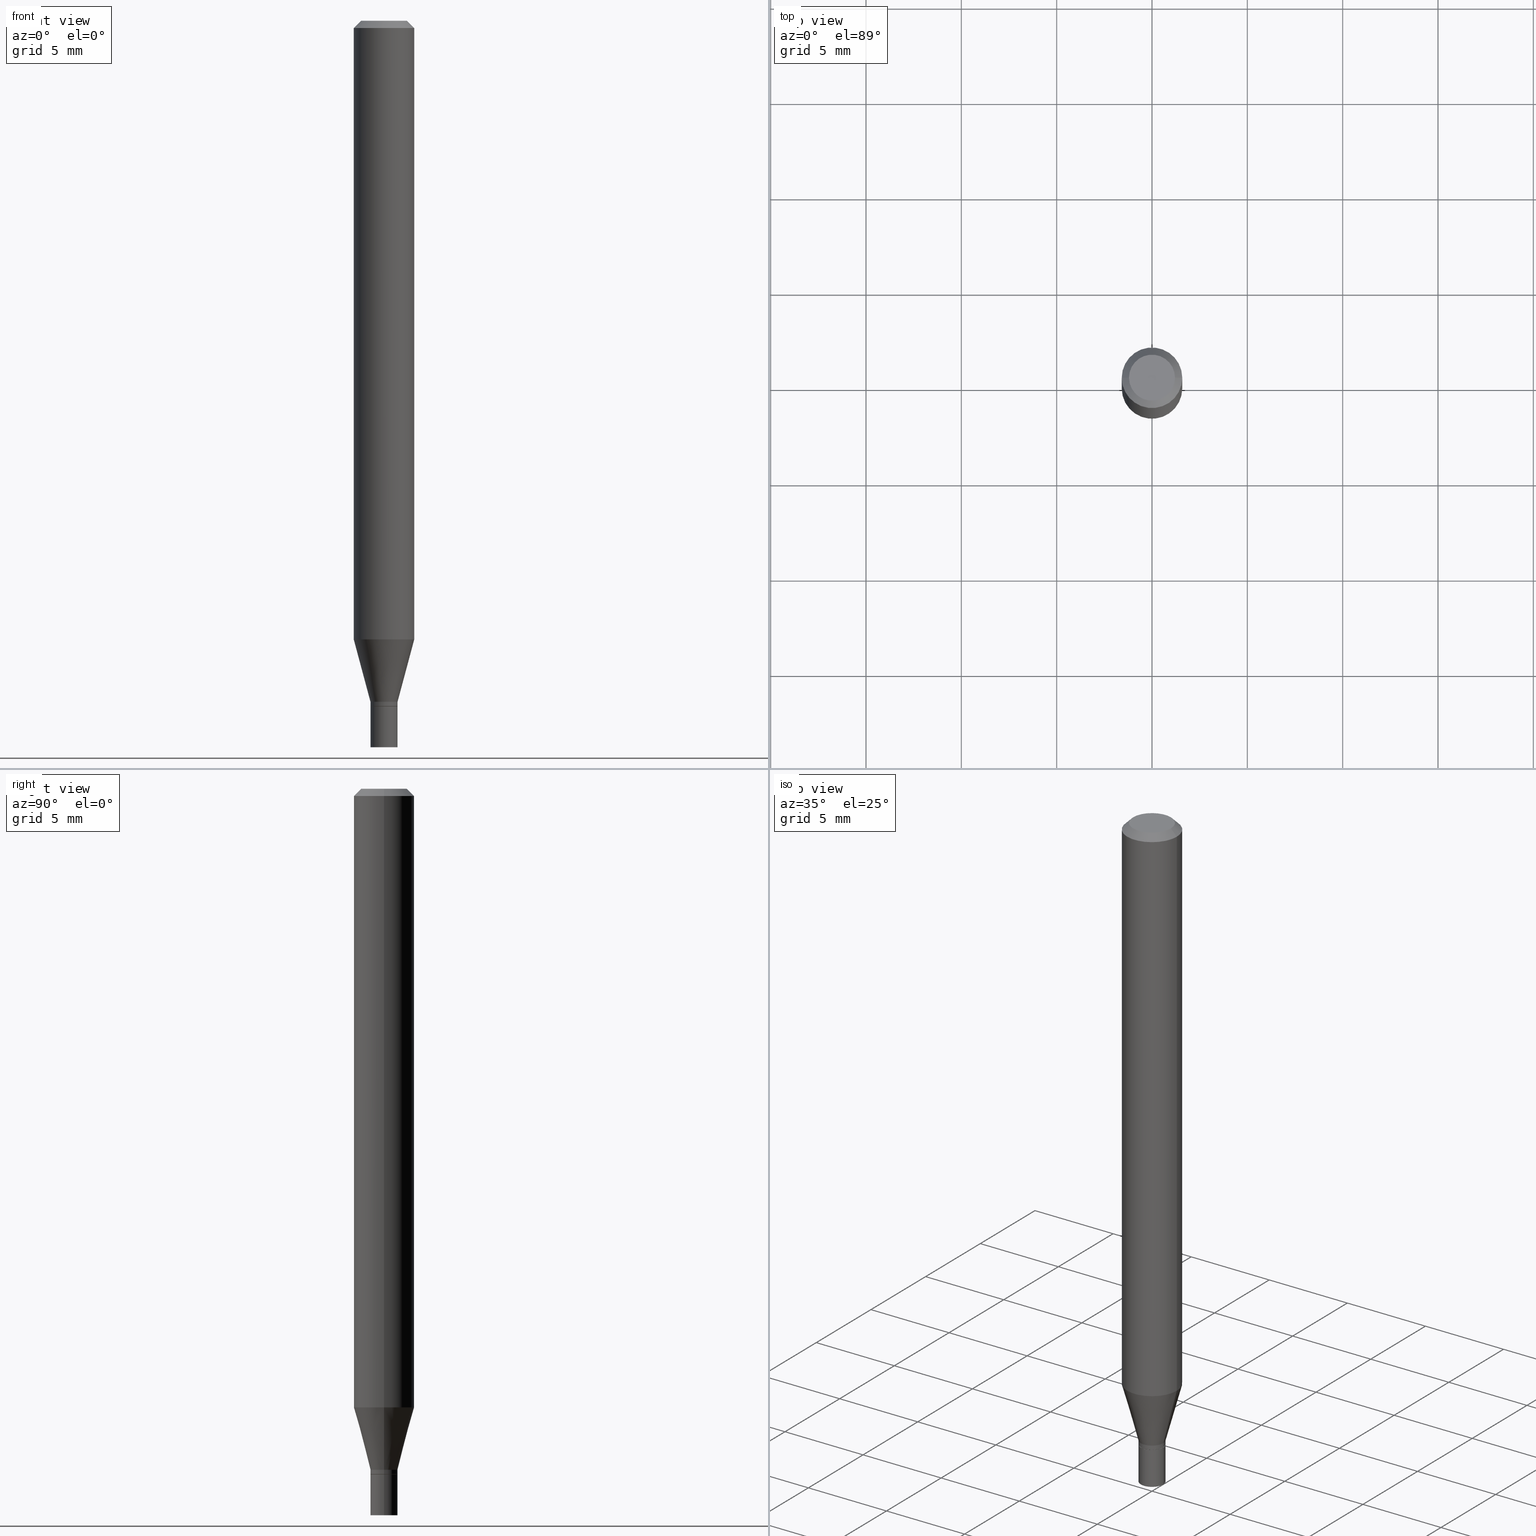
[diagram: canonical four-view strip — front | top / right | iso, engineering-drawing reading convention]
A machine part, canonical four-view strip (front | top / right | iso — engineering-drawing reading convention). The complete STEP part file that produces these views, byte-faithful:
ISO-10303-21;
HEADER;
FILE_DESCRIPTION (( 'STEP AP203' ),
    '1' );
FILE_NAME ('00352.STEP',
    '2024-03-19T21:02:02',
    ( '' ),
    ( '' ),
    'SwSTEP 2.0',
    'SolidWorks 2023',
    '' );
FILE_SCHEMA (( 'CONFIG_CONTROL_DESIGN' ));
ENDSEC;

DATA;
#1 = CARTESIAN_POINT ( 'NONE',  ( 0.000000000000000000, 0.000000000000000000, 0.000000000000000000 ) ) ;
#2 = APPROVAL_ROLE ( '' ) ;
#3 = CARTESIAN_POINT ( 'NONE',  ( 3.461561095155061243E-29, -4.942191835132473030E-15, -1.415500000000000203 ) ) ;
#4 = COORDINATED_UNIVERSAL_TIME_OFFSET ( 5, 0, .BEHIND. ) ;
#5 = VECTOR ( 'NONE', #147, 39.37007874015748143 ) ;
#6 = FACE_OUTER_BOUND ( 'NONE', #343, .T. ) ;
#7 = CYLINDRICAL_SURFACE ( 'NONE', #157, 0.02799999999999992426 ) ;
#8 = DIRECTION ( 'NONE',  ( 1.000000000000000000, -6.982962677686282488E-15, 0.000000000000000000 ) ) ;
#9 = APPLICATION_PROTOCOL_DEFINITION ( 'international standard', 'config_control_design', 1994, #446 ) ;
#10 = DIRECTION ( 'NONE',  ( 1.000000000000000000, -6.982962677686267499E-15, 4.876176775795935793E-29 ) ) ;
#11 = AXIS2_PLACEMENT_3D ( 'NONE', #306, #126, #262 ) ;
#12 = DIRECTION ( 'NONE',  ( 1.000000000000000000, -6.982962677686279332E-15, 0.000000000000000000 ) ) ;
#13 = DIRECTION ( 'NONE',  ( 1.000000000000000000, -6.982962677686266711E-15, 4.876176775795935232E-29 ) ) ;
#14 = EDGE_CURVE ( 'NONE', #93, #32, #31, .T. ) ;
#15 = CARTESIAN_POINT ( 'NONE',  ( 0.04749999999999999362, -4.035134999187576651E-16, 1.163426993633481204E-16 ) ) ;
#16 = DIRECTION ( 'NONE',  ( 0.000000000000000000, 0.000000000000000000, 1.000000000000000000 ) ) ;
#17 = PLANE ( 'NONE',  #173 ) ;
#18 = AXIS2_PLACEMENT_3D ( 'NONE', #85, #369, #216 ) ;
#19 = ORIENTED_EDGE ( 'NONE', *, *, #351, .T. ) ;
#20 = EDGE_CURVE ( 'NONE', #335, #93, #30, .T. ) ;
#21 = CARTESIAN_POINT ( 'NONE',  ( -0.02799999999999992426, -4.362728020290356187E-15, -1.406000000000000139 ) ) ;
#22 = LINE ( 'NONE', #163, #46 ) ;
#23 = ORIENTED_EDGE ( 'NONE', *, *, #102, .F. ) ;
#24 = EDGE_LOOP ( 'NONE', ( #349, #120, #136, #100 ) ) ;
#25 = EDGE_LOOP ( 'NONE', ( #226, #332 ) ) ;
#26 = AXIS2_PLACEMENT_3D ( 'NONE', #254, #50, #12 ) ;
#27 = CONICAL_SURFACE ( 'NONE', #66, 0.02750000000000000014, 0.7853981633974739252 ) ;
#28 = CC_DESIGN_SECURITY_CLASSIFICATION ( #36, ( #300 ) ) ;
#29 = EDGE_CURVE ( 'NONE', #347, #386, #73, .T. ) ;
#30 = LINE ( 'NONE', #435, #51 ) ;
#31 = LINE ( 'NONE', #68, #243 ) ;
#32 = VERTEX_POINT ( 'NONE', #256 ) ;
#33 = PERSON_AND_ORGANIZATION ( #420, #67 ) ;
#34 = MANIFOLD_SOLID_BREP ( 'Body-Move/Copy2[2]', #362 ) ;
#35 = CIRCLE ( 'NONE', #192, 0.02800000000000000405 ) ;
#36 = SECURITY_CLASSIFICATION ( '', '', #184 ) ;
#37 = ORIENTED_EDGE ( 'NONE', *, *, #230, .F. ) ;
#38 = DIRECTION ( 'NONE',  ( -2.445468806185136597E-29, 3.491481338843145583E-15, 1.000000000000000000 ) ) ;
#39 = EDGE_CURVE ( 'NONE', #202, #278, #432, .T. ) ;
#40 = DATE_TIME_ROLE ( 'creation_date' ) ;
#41 = CARTESIAN_POINT ( 'NONE',  ( 0.06250000000000000000, -4.888073874380388472E-16, -0.01499999999999999944 ) ) ;
#42 = COORDINATED_UNIVERSAL_TIME_OFFSET ( 5, 0, .BEHIND. ) ;
#43 = CARTESIAN_POINT ( 'NONE',  ( -0.02799999999999992426, -4.743239869119645590E-15, -1.415500000000000203 ) ) ;
#44 = APPROVAL_DATE_TIME ( #361, #135 ) ;
#45 = EDGE_CURVE ( 'NONE', #32, #347, #60, .T. ) ;
#46 = VECTOR ( 'NONE', #457, 39.37007874015748143 ) ;
#47 = DIRECTION ( 'NONE',  ( -2.445468806185136597E-29, 3.491481338843145583E-15, 1.000000000000000000 ) ) ;
#48 = PERSON_AND_ORGANIZATION_ROLE ( 'design_supplier' ) ;
#49 = DIRECTION ( 'NONE',  ( 1.000000000000000000, -6.982962677686267499E-15, 4.884662768193073002E-29 ) ) ;
#50 = DIRECTION ( 'NONE',  ( -2.445468806185136597E-29, 3.491481338843145583E-15, 1.000000000000000000 ) ) ;
#51 = VECTOR ( 'NONE', #395, 39.37007874015748143 ) ;
#52 = VECTOR ( 'NONE', #194, 39.37007874015748143 ) ;
#53 = CARTESIAN_POINT ( 'NONE',  ( 3.668203209277705088E-31, -5.237222008264718399E-17, -0.01499999999999999944 ) ) ;
#54 = CARTESIAN_POINT ( 'NONE',  ( 0.02800000000000000405, -5.432744963239933676E-15, -1.500000000000000222 ) ) ;
#55 =( NAMED_UNIT ( * ) PLANE_ANGLE_UNIT ( ) SI_UNIT ( $, .RADIAN. ) );
#56 = DIRECTION ( 'NONE',  ( -2.445468806185136597E-29, 3.491481338843145583E-15, 1.000000000000000000 ) ) ;
#57 = ORIENTED_EDGE ( 'NONE', *, *, #108, .F. ) ;
#58 =( CONVERSION_BASED_UNIT ( 'INCH', #131 ) LENGTH_UNIT ( ) NAMED_UNIT ( #130 ) );
#59 = EDGE_CURVE ( 'NONE', #335, #198, #275, .T. ) ;
#60 = CIRCLE ( 'NONE', #18, 0.02799999999999992426 ) ;
#61 = CARTESIAN_POINT ( 'NONE',  ( -0.04749999999999999362, 3.578768372314212971E-16, 1.163426993633431407E-16 ) ) ;
#62 = CARTESIAN_POINT ( 'NONE',  ( 0.02750000000000000014, -5.135969049438267025E-15, -1.416000000000000147 ) ) ;
#63 = DIRECTION ( 'NONE',  ( -1.000000000000000000, 6.982962677686266711E-15, 0.000000000000000000 ) ) ;
#64 = ADVANCED_FACE ( 'NONE', ( #292 ), #252, .T. ) ;
#65 = EDGE_LOOP ( 'NONE', ( #247, #461, #430, #196 ) ) ;
#66 = AXIS2_PLACEMENT_3D ( 'NONE', #110, #117, #368 ) ;
#67 = ORGANIZATION ( 'UNSPECIFIED', 'UNSPECIFIED', '' ) ;
#68 = CARTESIAN_POINT ( 'NONE',  ( 0.02799999999999992426, -1.955229549752149571E-16, 1.365329497222858288E-30 ) ) ;
#69 = ORIENTED_EDGE ( 'NONE', *, *, #389, .T. ) ;
#70 = VERTEX_POINT ( 'NONE', #212 ) ;
#71 = ORIENTED_EDGE ( 'NONE', *, *, #351, .F. ) ;
#72 = PERSON_AND_ORGANIZATION ( #420, #67 ) ;
#73 = LINE ( 'NONE', #260, #337 ) ;
#74 = APPROVAL_ROLE ( '' ) ;
#75 = CYLINDRICAL_SURFACE ( 'NONE', #371, 0.02800000000000000405 ) ;
#76 = EDGE_CURVE ( 'NONE', #122, #202, #255, .T. ) ;
#77 = DIRECTION ( 'NONE',  ( 1.000000000000000000, -6.982962677686266711E-15, 4.876176775795935232E-29 ) ) ;
#78 = COORDINATED_UNIVERSAL_TIME_OFFSET ( 5, 0, .BEHIND. ) ;
#79 = CIRCLE ( 'NONE', #223, 0.02799999999999992426 ) ;
#80 = MECHANICAL_CONTEXT ( 'NONE', #352, 'mechanical' ) ;
#81 = DIRECTION ( 'NONE',  ( 1.000000000000000000, -6.982962677686282488E-15, 0.000000000000000000 ) ) ;
#82 = EDGE_CURVE ( 'NONE', #311, #386, #336, .T. ) ;
#83 = CARTESIAN_POINT ( 'NONE',  ( 0.000000000000000000, 0.000000000000000000, 0.000000000000000000 ) ) ;
#84 = LINE ( 'NONE', #334, #221 ) ;
#85 = CARTESIAN_POINT ( 'NONE',  ( 3.438329141496302499E-29, -4.909022762413463673E-15, -1.406000000000000139 ) ) ;
#86 = FACE_OUTER_BOUND ( 'NONE', #25, .T. ) ;
#87 = DIRECTION ( 'NONE',  ( 1.000000000000000000, -6.982962677686282488E-15, 0.000000000000000000 ) ) ;
#88 = ORIENTED_EDGE ( 'NONE', *, *, #271, .T. ) ;
#89 = EDGE_CURVE ( 'NONE', #122, #168, #113, .T. ) ;
#90 = LINE ( 'NONE', #220, #443 ) ;
#91 = DIRECTION ( 'NONE',  ( -1.000000000000000000, 6.982962677686265922E-15, -4.876176775795935793E-29 ) ) ;
#92 = PLANE ( 'NONE',  #214 ) ;
#93 = VERTEX_POINT ( 'NONE', #185 ) ;
#94 = ORIENTED_EDGE ( 'NONE', *, *, #271, .F. ) ;
#95 = ADVANCED_FACE ( 'NONE', ( #410 ), #345, .T. ) ;
#96 = ORIENTED_EDGE ( 'NONE', *, *, #89, .T. ) ;
#97 = UNCERTAINTY_MEASURE_WITH_UNIT (LENGTH_MEASURE( 1.000000000000000082E-05 ), #58, 'distance_accuracy_value', 'NONE');
#98 = CONICAL_SURFACE ( 'NONE', #466, 0.02799999999999992426, 0.2617993877991492413 ) ;
#99 = CC_DESIGN_APPROVAL ( #135, ( #300 ) ) ;
#100 = ORIENTED_EDGE ( 'NONE', *, *, #164, .F. ) ;
#101 = PERSON_AND_ORGANIZATION_ROLE ( 'creator' ) ;
#102 = EDGE_CURVE ( 'NONE', #386, #278, #84, .T. ) ;
#103 = EDGE_LOOP ( 'NONE', ( #391, #88, #234, #464 ) ) ;
#104 = CALENDAR_DATE ( 2024, 19, 3 ) ;
#105 = CARTESIAN_POINT ( 'NONE',  ( -0.06250000000000000000, -1.811834127206330894E-15, -0.01499999999999999944 ) ) ;
#106 = COORDINATED_UNIVERSAL_TIME_OFFSET ( 5, 0, .BEHIND. ) ;
#107 = DIRECTION ( 'NONE',  ( -1.000000000000000000, 6.982962677686266711E-15, 0.000000000000000000 ) ) ;
#108 = EDGE_CURVE ( 'NONE', #70, #191, #405, .T. ) ;
#109 = ORIENTED_EDGE ( 'NONE', *, *, #102, .T. ) ;
#110 = CARTESIAN_POINT ( 'NONE',  ( 3.462783829558154044E-29, -4.943937575801894533E-15, -1.416000000000000147 ) ) ;
#111 = EDGE_LOOP ( 'NONE', ( #169, #37 ) ) ;
#112 = DIRECTION ( 'NONE',  ( 1.000000000000000000, -6.982962677686282488E-15, 0.000000000000000000 ) ) ;
#113 = CIRCLE ( 'NONE', #377, 0.04749999999999999362 ) ;
#114 = AXIS2_PLACEMENT_3D ( 'NONE', #444, #364, #287 ) ;
#115 = CYLINDRICAL_SURFACE ( 'NONE', #139, 0.02799999999999992426 ) ;
#116 = PERSON_AND_ORGANIZATION ( #420, #67 ) ;
#117 = DIRECTION ( 'NONE',  ( -2.445468806185136597E-29, 3.491481338843145583E-15, 1.000000000000000000 ) ) ;
#118 = ADVANCED_FACE ( 'NONE', ( #159 ), #188, .F. ) ;
#119 = PERSON_AND_ORGANIZATION_ROLE ( 'classification_officer' ) ;
#120 = ORIENTED_EDGE ( 'NONE', *, *, #76, .T. ) ;
#121 = DIRECTION ( 'NONE',  ( -2.438088387897960049E-29, 3.491481338843145188E-15, 1.000000000000000000 ) ) ;
#122 = VERTEX_POINT ( 'NONE', #15 ) ;
#123 = LOCAL_TIME ( 17, 2, 2.000000000000000000, #106 ) ;
#124 = CARTESIAN_POINT ( 'NONE',  ( 3.462783829558154044E-29, -4.943937575801894533E-15, -1.416000000000000147 ) ) ;
#125 = ORIENTED_EDGE ( 'NONE', *, *, #20, .T. ) ;
#126 = DIRECTION ( 'NONE',  ( -2.445468806185136597E-29, 3.491481338843145583E-15, 1.000000000000000000 ) ) ;
#127 = DIRECTION ( 'NONE',  ( 1.000000000000000000, 0.000000000000000000, 0.000000000000000000 ) ) ;
#128 = DIRECTION ( 'NONE',  ( -2.445468806185136877E-29, 3.491481338843145188E-15, 1.000000000000000000 ) ) ;
#129 = CARTESIAN_POINT ( 'NONE',  ( 3.316907271900976096E-16, 0.04749999999999999362, -1.076740139133766305E-16 ) ) ;
#130 = DIMENSIONAL_EXPONENTS ( 1.000000000000000000, 0.000000000000000000, 0.000000000000000000, 0.000000000000000000, 0.000000000000000000, 0.000000000000000000, 0.000000000000000000 ) ;
#131 = LENGTH_MEASURE_WITH_UNIT ( LENGTH_MEASURE( 0.02539999999999999897 ), #427 );
#132 = LINE ( 'NONE', #265, #309 ) ;
#133 = AXIS2_PLACEMENT_3D ( 'NONE', #331, #121, #215 ) ;
#134 = ORIENTED_EDGE ( 'NONE', *, *, #302, .F. ) ;
#135 = APPROVAL ( #208, 'UNSPECIFIED' ) ;
#136 = ORIENTED_EDGE ( 'NONE', *, *, #39, .T. ) ;
#137 = AXIS2_PLACEMENT_3D ( 'NONE', #367, #217, #13 ) ;
#138 = ADVANCED_FACE ( 'NONE', ( #154 ), #115, .T. ) ;
#139 = AXIS2_PLACEMENT_3D ( 'NONE', #83, #213, #261 ) ;
#140 = CARTESIAN_POINT ( 'NONE',  ( 3.461561095155061243E-29, -4.942191835132473030E-15, -1.415500000000000203 ) ) ;
#141 = CARTESIAN_POINT ( 'NONE',  ( 3.576687321579069994E-29, -5.368277968210015545E-15, -1.500000000000000222 ) ) ;
#142 = CALENDAR_DATE ( 2024, 19, 3 ) ;
#143 = AXIS2_PLACEMENT_3D ( 'NONE', #416, #409, #370 ) ;
#144 = APPROVAL_PERSON_ORGANIZATION ( #245, #135, #74 ) ;
#145 = CARTESIAN_POINT ( 'NONE',  ( -0.02800000000000000405, -4.891627826020478915E-15, -1.500000000000000222 ) ) ;
#146 = CARTESIAN_POINT ( 'NONE',  ( 0.02800000000000000405, -5.139460530777110033E-15, -1.416000000000000147 ) ) ;
#147 = DIRECTION ( 'NONE',  ( -2.445468806185136877E-29, 3.491481338843145188E-15, 1.000000000000000000 ) ) ;
#148 = DIRECTION ( 'NONE',  ( 1.000000000000000000, -6.982962677686282488E-15, 0.000000000000000000 ) ) ;
#149 = EDGE_CURVE ( 'NONE', #231, #312, #167, .T. ) ;
#150 = AXIS2_PLACEMENT_3D ( 'NONE', #365, #242, #107 ) ;
#151 = PERSON_AND_ORGANIZATION ( #420, #67 ) ;
#152 = CARTESIAN_POINT ( 'NONE',  ( -2.845124421204368749E-45, 4.062083637377592914E-31, 1.163426993633455566E-16 ) ) ;
#153 = ADVANCED_FACE ( 'NONE', ( #86 ), #17, .F. ) ;
#154 = FACE_OUTER_BOUND ( 'NONE', #342, .T. ) ;
#155 = DATE_TIME_ROLE ( 'classification_date' ) ;
#156 = CLOSED_SHELL ( 'NONE', ( #64, #171, #442, #153 ) ) ;
#157 = AXIS2_PLACEMENT_3D ( 'NONE', #211, #253, #10 ) ;
#158 = LOCAL_TIME ( 17, 2, 2.000000000000000000, #195 ) ;
#159 = FACE_OUTER_BOUND ( 'NONE', #111, .T. ) ;
#160 = CARTESIAN_POINT ( 'NONE',  ( -2.845124421204368749E-45, 4.062083637377592914E-31, 1.163426993633455566E-16 ) ) ;
#161 = DIRECTION ( 'NONE',  ( -2.445468806185136597E-29, 3.491481338843145583E-15, 1.000000000000000000 ) ) ;
#162 = DIRECTION ( 'NONE',  ( 1.000000000000000000, -6.982962677686267499E-15, 4.884662768193073002E-29 ) ) ;
#163 = CARTESIAN_POINT ( 'NONE',  ( 0.06250000000000000000, -4.364351673553916694E-16, 3.047610484872459871E-30 ) ) ;
#164 = EDGE_CURVE ( 'NONE', #168, #278, #90, .T. ) ;
#165 = DIRECTION ( 'NONE',  ( 1.000000000000000000, -6.982962677686266711E-15, 4.876176775795935793E-29 ) ) ;
#166 = EDGE_LOOP ( 'NONE', ( #429, #109, #434, #428 ) ) ;
#167 = CIRCLE ( 'NONE', #143, 0.02800000000000000405 ) ;
#168 = VERTEX_POINT ( 'NONE', #61 ) ;
#169 = ORIENTED_EDGE ( 'NONE', *, *, #59, .F. ) ;
#170 = VERTEX_POINT ( 'NONE', #43 ) ;
#171 = ADVANCED_FACE ( 'NONE', ( #6 ), #204, .F. ) ;
#172 = ORIENTED_EDGE ( 'NONE', *, *, #399, .T. ) ;
#173 = AXIS2_PLACEMENT_3D ( 'NONE', #301, #263, #417 ) ;
#174 = CC_DESIGN_APPROVAL ( #373, ( #333 ) ) ;
#175 = ORIENTED_EDGE ( 'NONE', *, *, #264, .T. ) ;
#176 = CYLINDRICAL_SURFACE ( 'NONE', #354, 0.06250000000000000000 ) ;
#177 = DIRECTION ( 'NONE',  ( -2.445468806185136597E-29, 3.491481338843145583E-15, 1.000000000000000000 ) ) ;
#178 = CC_DESIGN_DATE_AND_TIME_ASSIGNMENT ( #414, #155, ( #36 ) ) ;
#179 = CARTESIAN_POINT ( 'NONE',  ( -0.02750000000000000014, -4.745889096293755213E-15, -1.416000000000000147 ) ) ;
#180 = PERSON_AND_ORGANIZATION ( #420, #67 ) ;
#181 = AXIS2_PLACEMENT_3D ( 'NONE', #398, #293, #165 ) ;
#182 = FACE_OUTER_BOUND ( 'NONE', #270, .T. ) ;
#183 = EDGE_CURVE ( 'NONE', #32, #311, #280, .T. ) ;
#184 = SECURITY_CLASSIFICATION_LEVEL ( 'unclassified' ) ;
#185 = CARTESIAN_POINT ( 'NONE',  ( 0.02799999999999992426, -5.137714790107688529E-15, -1.415500000000000203 ) ) ;
#186 = AXIS2_PLACEMENT_3D ( 'NONE', #190, #305, #294 ) ;
#187 = CC_DESIGN_APPROVAL ( #460, ( #36 ) ) ;
#188 = PLANE ( 'NONE',  #133 ) ;
#189 =( NAMED_UNIT ( * ) SI_UNIT ( $, .STERADIAN. ) SOLID_ANGLE_UNIT ( ) );
#190 = CARTESIAN_POINT ( 'NONE',  ( 3.462783829558154044E-29, -4.943937575801894533E-15, -1.416000000000000147 ) ) ;
#191 = VERTEX_POINT ( 'NONE', #146 ) ;
#192 = AXIS2_PLACEMENT_3D ( 'NONE', #227, #383, #453 ) ;
#193 = CIRCLE ( 'NONE', #11, 0.02800000000000000405 ) ;
#194 = DIRECTION ( 'NONE',  ( -2.445468806185136877E-29, 3.491481338843145188E-15, 1.000000000000000000 ) ) ;
#195 = COORDINATED_UNIVERSAL_TIME_OFFSET ( 5, 0, .BEHIND. ) ;
#196 = ORIENTED_EDGE ( 'NONE', *, *, #431, .F. ) ;
#197 = ORIENTED_EDGE ( 'NONE', *, *, #82, .F. ) ;
#198 = VERTEX_POINT ( 'NONE', #179 ) ;
#199 = LOCAL_TIME ( 17, 2, 2.000000000000000000, #42 ) ;
#200 = EDGE_CURVE ( 'NONE', #347, #32, #338, .T. ) ;
#201 = ORIENTED_EDGE ( 'NONE', *, *, #264, .F. ) ;
#202 = VERTEX_POINT ( 'NONE', #41 ) ;
#203 = ORIENTED_EDGE ( 'NONE', *, *, #59, .T. ) ;
#204 = PLANE ( 'NONE',  #322 ) ;
#205 = CONICAL_SURFACE ( 'NONE', #150, 0.06250000000000000000, 0.7853981633974445042 ) ;
#206 = CALENDAR_DATE ( 2024, 19, 3 ) ;
#207 = CC_DESIGN_PERSON_AND_ORGANIZATION_ASSIGNMENT ( #72, #101, ( #333 ) ) ;
#208 = APPROVAL_STATUS ( 'not_yet_approved' ) ;
#209 = AXIS2_PLACEMENT_3D ( 'NONE', #53, #448, #415 ) ;
#210 = EDGE_CURVE ( 'NONE', #93, #170, #79, .T. ) ;
#211 = CARTESIAN_POINT ( 'NONE',  ( 0.000000000000000000, 0.000000000000000000, 0.000000000000000000 ) ) ;
#212 = CARTESIAN_POINT ( 'NONE',  ( -0.02800000000000000405, -4.891627826020478915E-15, -1.416000000000000147 ) ) ;
#213 = DIRECTION ( 'NONE',  ( -2.445468806185136597E-29, 3.491481338843145583E-15, 1.000000000000000000 ) ) ;
#214 = AXIS2_PLACEMENT_3D ( 'NONE', #129, #380, #91 ) ;
#215 = DIRECTION ( 'NONE',  ( 1.000000000000000000, -6.982962677686265922E-15, 4.876176775795935793E-29 ) ) ;
#216 = DIRECTION ( 'NONE',  ( 1.000000000000000000, -6.982962677686282488E-15, 0.000000000000000000 ) ) ;
#217 = DIRECTION ( 'NONE',  ( -2.445468806185136597E-29, 3.491481338843145583E-15, 1.000000000000000000 ) ) ;
#218 = DIRECTION ( 'NONE',  ( 2.445468806185136597E-29, -3.491481338843145583E-15, -1.000000000000000000 ) ) ;
#219 = ORIENTED_EDGE ( 'NONE', *, *, #320, .T. ) ;
#220 = CARTESIAN_POINT ( 'NONE',  ( -0.06250000000000000000, 3.840629472727444916E-16, -0.01499999999999999944 ) ) ;
#221 = VECTOR ( 'NONE', #128, 39.37007874015748143 ) ;
#222 = DATE_AND_TIME ( #452, #158 ) ;
#223 = AXIS2_PLACEMENT_3D ( 'NONE', #3, #438, #148 ) ;
#224 = ADVANCED_FACE ( 'NONE', ( #404 ), #205, .T. ) ;
#225 = CARTESIAN_POINT ( 'NONE',  ( -0.06250000000000000000, -4.015385244180076930E-15, -1.277244247138873634 ) ) ;
#226 = ORIENTED_EDGE ( 'NONE', *, *, #366, .T. ) ;
#227 = CARTESIAN_POINT ( 'NONE',  ( 3.668203209277704895E-29, -5.237222008264718177E-15, -1.500000000000000222 ) ) ;
#228 = ORIENTED_EDGE ( 'NONE', *, *, #200, .F. ) ;
#229 = ORIENTED_EDGE ( 'NONE', *, *, #210, .F. ) ;
#230 = EDGE_CURVE ( 'NONE', #198, #335, #396, .T. ) ;
#231 = VERTEX_POINT ( 'NONE', #145 ) ;
#232 = CONICAL_SURFACE ( 'NONE', #244, 0.06250000000000000000, 0.7853981633974445042 ) ;
#233 = ORIENTED_EDGE ( 'NONE', *, *, #20, .F. ) ;
#234 = ORIENTED_EDGE ( 'NONE', *, *, #45, .F. ) ;
#235 = ORIENTED_EDGE ( 'NONE', *, *, #149, .T. ) ;
#236 = ORIENTED_EDGE ( 'NONE', *, *, #29, .T. ) ;
#237 = EDGE_LOOP ( 'NONE', ( #274, #71, #422, #219 ) ) ;
#238 = DATE_AND_TIME ( #206, #199 ) ;
#239 = DIRECTION ( 'NONE',  ( -2.445468806185136597E-29, 3.491481338843145583E-15, 1.000000000000000000 ) ) ;
#240 = ORIENTED_EDGE ( 'NONE', *, *, #399, .F. ) ;
#241 = ADVANCED_FACE ( 'NONE', ( #182 ), #176, .T. ) ;
#242 = DIRECTION ( 'NONE',  ( 2.445468806185136597E-29, -3.491481338843145583E-15, -1.000000000000000000 ) ) ;
#243 = VECTOR ( 'NONE', #346, 39.37007874015748143 ) ;
#244 = AXIS2_PLACEMENT_3D ( 'NONE', #425, #218, #63 ) ;
#245 = PERSON_AND_ORGANIZATION ( #420, #67 ) ;
#246 = CARTESIAN_POINT ( 'NONE',  ( 3.462783829558154044E-29, -4.943937575801894533E-15, -1.416000000000000147 ) ) ;
#247 = ORIENTED_EDGE ( 'NONE', *, *, #29, .F. ) ;
#248 = FACE_OUTER_BOUND ( 'NONE', #65, .T. ) ;
#249 = CC_DESIGN_PERSON_AND_ORGANIZATION_ASSIGNMENT ( #180, #323, ( #300 ) ) ;
#250 = LINE ( 'NONE', #295, #5 ) ;
#251 = VECTOR ( 'NONE', #436, 39.37007874015748143 ) ;
#252 = CYLINDRICAL_SURFACE ( 'NONE', #137, 0.02800000000000000405 ) ;
#253 = DIRECTION ( 'NONE',  ( -2.445468806185136597E-29, 3.491481338843145583E-15, 1.000000000000000000 ) ) ;
#254 = CARTESIAN_POINT ( 'NONE',  ( 3.462783829558154044E-29, -4.943937575801894533E-15, -1.416000000000000147 ) ) ;
#255 = LINE ( 'NONE', #329, #281 ) ;
#256 = CARTESIAN_POINT ( 'NONE',  ( 0.02799999999999992426, -5.104545717388679172E-15, -1.406000000000000139 ) ) ;
#257 = CC_DESIGN_PERSON_AND_ORGANIZATION_ASSIGNMENT ( #330, #119, ( #36 ) ) ;
#258 = CARTESIAN_POINT ( 'NONE',  ( 3.123460964257534823E-29, -4.459474454030139547E-15, -1.277244247138873634 ) ) ;
#259 = AXIS2_PLACEMENT_3D ( 'NONE', #160, #339, #162 ) ;
#260 = CARTESIAN_POINT ( 'NONE',  ( -0.02799999999999992426, -4.710070796400636233E-15, -1.406000000000000139 ) ) ;
#261 = DIRECTION ( 'NONE',  ( 1.000000000000000000, -6.982962677686267499E-15, 4.876176775795935793E-29 ) ) ;
#262 = DIRECTION ( 'NONE',  ( 1.000000000000000000, -6.982962677686262766E-15, 0.000000000000000000 ) ) ;
#263 = DIRECTION ( 'NONE',  ( 2.438088387897960049E-29, -3.491481338843145188E-15, -1.000000000000000000 ) ) ;
#264 = EDGE_CURVE ( 'NONE', #170, #93, #406, .T. ) ;
#265 = CARTESIAN_POINT ( 'NONE',  ( -0.02750000000000000014, -4.748538323467866414E-15, -1.416000000000000147 ) ) ;
#266 = EDGE_LOOP ( 'NONE', ( #203, #172, #229, #233 ) ) ;
#267 = APPROVAL_ROLE ( '' ) ;
#268 = CONICAL_SURFACE ( 'NONE', #459, 0.02799999999999992426, 0.2617993877991492413 ) ;
#269 = FACE_OUTER_BOUND ( 'NONE', #296, .T. ) ;
#270 = EDGE_LOOP ( 'NONE', ( #23, #310, #382, #353 ) ) ;
#271 = EDGE_CURVE ( 'NONE', #170, #347, #283, .T. ) ;
#272 = APPROVAL_DATE_TIME ( #222, #460 ) ;
#273 = ORIENTED_EDGE ( 'NONE', *, *, #45, .T. ) ;
#274 = ORIENTED_EDGE ( 'NONE', *, *, #76, .F. ) ;
#275 = CIRCLE ( 'NONE', #26, 0.02750000000000000014 ) ;
#276 =( GEOMETRIC_REPRESENTATION_CONTEXT ( 3 ) GLOBAL_UNCERTAINTY_ASSIGNED_CONTEXT ( ( #97 ) ) GLOBAL_UNIT_ASSIGNED_CONTEXT ( ( #58, #55, #189 ) ) REPRESENTATION_CONTEXT ( 'NONE', 'WORKASPACE' ) );
#277 = ORIENTED_EDGE ( 'NONE', *, *, #183, .F. ) ;
#278 = VERTEX_POINT ( 'NONE', #105 ) ;
#279 = CARTESIAN_POINT ( 'NONE',  ( -0.02799999999999992426, 1.989519660128275138E-16, -1.377301825271370043E-30 ) ) ;
#280 = LINE ( 'NONE', #288, #412 ) ;
#281 = VECTOR ( 'NONE', #297, 39.37007874015748854 ) ;
#282 = CIRCLE ( 'NONE', #114, 0.06250000000000000000 ) ;
#283 = LINE ( 'NONE', #279, #251 ) ;
#284 = ADVANCED_FACE ( 'NONE', ( #397 ), #319, .T. ) ;
#285 = CARTESIAN_POINT ( 'NONE',  ( 0.000000000000000000, 0.000000000000000000, 0.000000000000000000 ) ) ;
#286 = APPLICATION_PROTOCOL_DEFINITION ( 'international standard', 'config_control_design', 1994, #352 ) ;
#287 = DIRECTION ( 'NONE',  ( 1.000000000000000000, -6.982962677686262766E-15, 0.000000000000000000 ) ) ;
#288 = CARTESIAN_POINT ( 'NONE',  ( 0.02799999999999992426, -5.104545717388679172E-15, -1.406000000000000139 ) ) ;
#289 = AXIS2_PLACEMENT_3D ( 'NONE', #439, #407, #298 ) ;
#290 = CARTESIAN_POINT ( 'NONE',  ( 0.06250000000000000000, -4.895909621385532005E-15, -1.277244247138873634 ) ) ;
#291 = EDGE_CURVE ( 'NONE', #312, #231, #35, .T. ) ;
#292 = FACE_OUTER_BOUND ( 'NONE', #393, .T. ) ;
#293 = DIRECTION ( 'NONE',  ( -2.445468806185136597E-29, 3.491481338843145583E-15, 1.000000000000000000 ) ) ;
#294 = DIRECTION ( 'NONE',  ( 1.000000000000000000, -6.982962677686262766E-15, 0.000000000000000000 ) ) ;
#295 = CARTESIAN_POINT ( 'NONE',  ( -0.02800000000000000405, 1.989519660128280808E-16, -1.377301825271373721E-30 ) ) ;
#296 = EDGE_LOOP ( 'NONE', ( #240, #426, #125, #201 ) ) ;
#297 = DIRECTION ( 'NONE',  ( 0.7071067811865447972, -7.319954787623245001E-15, -0.7071067811865501263 ) ) ;
#298 = DIRECTION ( 'NONE',  ( 1.000000000000000000, -6.982962677686266711E-15, 0.000000000000000000 ) ) ;
#299 = APPROVAL_STATUS ( 'not_yet_approved' ) ;
#300 = PRODUCT_DEFINITION_FORMATION_WITH_SPECIFIED_SOURCE ( 'ANY', '', #465, .NOT_KNOWN. ) ;
#301 = CARTESIAN_POINT ( 'NONE',  ( 1.955229549752501107E-16, 0.02799999999999506009, -1.416000000000000147 ) ) ;
#302 = EDGE_CURVE ( 'NONE', #231, #70, #250, .T. ) ;
#303 = FACE_OUTER_BOUND ( 'NONE', #24, .T. ) ;
#304 = SHAPE_DEFINITION_REPRESENTATION ( #387, #394 ) ;
#305 = DIRECTION ( 'NONE',  ( -2.445468806185136597E-29, 3.491481338843145583E-15, 1.000000000000000000 ) ) ;
#306 = CARTESIAN_POINT ( 'NONE',  ( 3.462783829558154044E-29, -4.943937575801894533E-15, -1.416000000000000147 ) ) ;
#307 = CARTESIAN_POINT ( 'NONE',  ( 3.438329141496302499E-29, -4.909022762413463673E-15, -1.406000000000000139 ) ) ;
#308 = ORIENTED_EDGE ( 'NONE', *, *, #366, .F. ) ;
#309 = VECTOR ( 'NONE', #341, 39.37007874015748143 ) ;
#310 = ORIENTED_EDGE ( 'NONE', *, *, #431, .T. ) ;
#311 = VERTEX_POINT ( 'NONE', #290 ) ;
#312 = VERTEX_POINT ( 'NONE', #54 ) ;
#313 = EDGE_LOOP ( 'NONE', ( #273, #236, #197, #277 ) ) ;
#314 = DATE_AND_TIME ( #104, #123 ) ;
#315 = AXIS2_PLACEMENT_3D ( 'NONE', #258, #56, #451 ) ;
#316 = AXIS2_PLACEMENT_3D ( 'NONE', #372, #16, #127 ) ;
#317 = CC_DESIGN_DATE_AND_TIME_ASSIGNMENT ( #238, #40, ( #333 ) ) ;
#318 = DIRECTION ( 'NONE',  ( -2.445468806185136597E-29, 3.491481338843145583E-15, 1.000000000000000000 ) ) ;
#319 = CYLINDRICAL_SURFACE ( 'NONE', #181, 0.06250000000000000000 ) ;
#320 = EDGE_CURVE ( 'NONE', #278, #202, #450, .T. ) ;
#321 = DIRECTION ( 'NONE',  ( 1.000000000000000000, -6.982962677686279332E-15, 0.000000000000000000 ) ) ;
#322 = AXIS2_PLACEMENT_3D ( 'NONE', #141, #401, #358 ) ;
#323 = PERSON_AND_ORGANIZATION_ROLE ( 'creator' ) ;
#324 = DIRECTION ( 'NONE',  ( 1.000000000000000000, -6.982962677686266711E-15, 4.876176775795935793E-29 ) ) ;
#325 = PERSON_AND_ORGANIZATION_ROLE ( 'design_owner' ) ;
#326 = DIRECTION ( 'NONE',  ( -2.445468806185136597E-29, 3.491481338843145583E-15, 1.000000000000000000 ) ) ;
#327 = AXIS2_PLACEMENT_3D ( 'NONE', #124, #326, #445 ) ;
#328 = ADVANCED_FACE ( 'NONE', ( #418 ), #92, .F. ) ;
#329 = CARTESIAN_POINT ( 'NONE',  ( 0.06250000000000000000, -4.811533449433679005E-16, -0.01499999999999999944 ) ) ;
#330 = PERSON_AND_ORGANIZATION ( #420, #67 ) ;
#331 = CARTESIAN_POINT ( 'NONE',  ( 3.462783829558154044E-29, -4.943937575801894533E-15, -1.416000000000000147 ) ) ;
#332 = ORIENTED_EDGE ( 'NONE', *, *, #108, .T. ) ;
#333 = PRODUCT_DEFINITION ( 'UNKNOWN', '', #300, #455 ) ;
#334 = CARTESIAN_POINT ( 'NONE',  ( -0.06250000000000000000, 4.440892098500626162E-16, -3.074334431409316114E-30 ) ) ;
#335 = VERTEX_POINT ( 'NONE', #62 ) ;
#336 = CIRCLE ( 'NONE', #315, 0.06250000000000000000 ) ;
#337 = VECTOR ( 'NONE', #374, 39.37007874015748143 ) ;
#338 = CIRCLE ( 'NONE', #378, 0.02799999999999992426 ) ;
#339 = DIRECTION ( 'NONE',  ( -2.445468806185136597E-29, 3.491481338843145583E-15, 1.000000000000000000 ) ) ;
#340 = MANIFOLD_SOLID_BREP ( 'Body-Move/Copy2[1]', #156 ) ;
#341 = DIRECTION ( 'NONE',  ( -0.7071067811865656694, 7.493145998870420424E-15, 0.7071067811865294761 ) ) ;
#342 = EDGE_LOOP ( 'NONE', ( #94, #175, #462, #228 ) ) ;
#343 = EDGE_LOOP ( 'NONE', ( #384, #350 ) ) ;
#344 = CC_DESIGN_PERSON_AND_ORGANIZATION_ASSIGNMENT ( #151, #48, ( #300 ) ) ;
#345 = CONICAL_SURFACE ( 'NONE', #327, 0.02750000000000000014, 0.7853981633974739252 ) ;
#346 = DIRECTION ( 'NONE',  ( -2.445468806185136877E-29, 3.491481338843145188E-15, 1.000000000000000000 ) ) ;
#347 = VERTEX_POINT ( 'NONE', #21 ) ;
#348 = ORIENTED_EDGE ( 'NONE', *, *, #389, .F. ) ;
#349 = ORIENTED_EDGE ( 'NONE', *, *, #89, .F. ) ;
#350 = ORIENTED_EDGE ( 'NONE', *, *, #149, .F. ) ;
#351 = EDGE_CURVE ( 'NONE', #168, #122, #423, .T. ) ;
#352 = APPLICATION_CONTEXT ( 'configuration controlled 3d designs of mechanical parts and assemblies' ) ;
#353 = ORIENTED_EDGE ( 'NONE', *, *, #320, .F. ) ;
#354 = AXIS2_PLACEMENT_3D ( 'NONE', #1, #318, #324 ) ;
#355 = LOCAL_TIME ( 17, 2, 2.000000000000000000, #78 ) ;
#356 = CARTESIAN_POINT ( 'NONE',  ( 3.438329141496302499E-29, -4.909022762413463673E-15, -1.406000000000000139 ) ) ;
#357 = APPROVAL_DATE_TIME ( #314, #373 ) ;
#358 = DIRECTION ( 'NONE',  ( 1.000000000000000000, -6.982962677686265922E-15, 4.876176775795935793E-29 ) ) ;
#359 = ADVANCED_FACE ( 'NONE', ( #449 ), #268, .T. ) ;
#360 = DIRECTION ( 'NONE',  ( 0.2588190451025205729, 1.565188264969628081E-15, 0.9659258262890684232 ) ) ;
#361 = DATE_AND_TIME ( #142, #413 ) ;
#362 = CLOSED_SHELL ( 'NONE', ( #463, #95, #381, #284, #359, #456, #241, #224, #328, #118, #424, #138 ) ) ;
#363 = APPROVAL_PERSON_ORGANIZATION ( #403, #460, #267 ) ;
#364 = DIRECTION ( 'NONE',  ( -2.445468806185136597E-29, 3.491481338843145583E-15, 1.000000000000000000 ) ) ;
#365 = CARTESIAN_POINT ( 'NONE',  ( 3.668203209277705088E-31, -5.237222008264718399E-17, -0.01499999999999999944 ) ) ;
#366 = EDGE_CURVE ( 'NONE', #191, #70, #193, .T. ) ;
#367 = CARTESIAN_POINT ( 'NONE',  ( 0.000000000000000000, 0.000000000000000000, 0.000000000000000000 ) ) ;
#368 = DIRECTION ( 'NONE',  ( 1.000000000000000000, -6.982962677686279332E-15, 0.000000000000000000 ) ) ;
#369 = DIRECTION ( 'NONE',  ( -2.445468806185136597E-29, 3.491481338843145583E-15, 1.000000000000000000 ) ) ;
#370 = DIRECTION ( 'NONE',  ( 1.000000000000000000, -6.982962677686262766E-15, 0.000000000000000000 ) ) ;
#371 = AXIS2_PLACEMENT_3D ( 'NONE', #285, #440, #77 ) ;
#372 = CARTESIAN_POINT ( 'NONE',  ( 0.000000000000000000, 0.000000000000000000, 0.000000000000000000 ) ) ;
#373 = APPROVAL ( #433, 'UNSPECIFIED' ) ;
#374 = DIRECTION ( 'NONE',  ( -0.2588190451025205729, 5.211531920934545520E-15, 0.9659258262890684232 ) ) ;
#375 = LINE ( 'NONE', #454, #52 ) ;
#376 = DIRECTION ( 'NONE',  ( -0.7071067811865447972, 2.468850131082228662E-15, -0.7071067811865501263 ) ) ;
#377 = AXIS2_PLACEMENT_3D ( 'NONE', #152, #161, #49 ) ;
#378 = AXIS2_PLACEMENT_3D ( 'NONE', #356, #38, #112 ) ;
#379 = APPROVAL_PERSON_ORGANIZATION ( #33, #373, #2 ) ;
#380 = DIRECTION ( 'NONE',  ( 2.438088387897960049E-29, -3.491481338843145188E-15, -1.000000000000000000 ) ) ;
#381 = ADVANCED_FACE ( 'NONE', ( #303 ), #232, .T. ) ;
#382 = ORIENTED_EDGE ( 'NONE', *, *, #411, .T. ) ;
#383 = DIRECTION ( 'NONE',  ( -2.445468806185136597E-29, 3.491481338843145583E-15, 1.000000000000000000 ) ) ;
#384 = ORIENTED_EDGE ( 'NONE', *, *, #291, .F. ) ;
#385 = AXIS2_PLACEMENT_3D ( 'NONE', #140, #177, #8 ) ;
#386 = VERTEX_POINT ( 'NONE', #225 ) ;
#387 = PRODUCT_DEFINITION_SHAPE ( 'NONE', 'NONE',  #333 ) ;
#388 = EDGE_LOOP ( 'NONE', ( #134, #235, #69, #57 ) ) ;
#389 = EDGE_CURVE ( 'NONE', #312, #191, #375, .T. ) ;
#390 = EDGE_LOOP ( 'NONE', ( #19, #96 ) ) ;
#391 = ORIENTED_EDGE ( 'NONE', *, *, #210, .T. ) ;
#392 = PRODUCT_RELATED_PRODUCT_CATEGORY ( 'detail', '', ( #465 ) ) ;
#393 = EDGE_LOOP ( 'NONE', ( #458, #419, #308, #348 ) ) ;
#394 = ADVANCED_BREP_SHAPE_REPRESENTATION ( '00352', ( #340, #34, #316 ), #276 ) ;
#395 = DIRECTION ( 'NONE',  ( 0.7071067811865656694, -2.468850131082446387E-15, 0.7071067811865294761 ) ) ;
#396 = CIRCLE ( 'NONE', #437, 0.02750000000000000014 ) ;
#397 = FACE_OUTER_BOUND ( 'NONE', #166, .T. ) ;
#398 = CARTESIAN_POINT ( 'NONE',  ( 0.000000000000000000, 0.000000000000000000, 0.000000000000000000 ) ) ;
#399 = EDGE_CURVE ( 'NONE', #198, #170, #132, .T. ) ;
#400 = FACE_OUTER_BOUND ( 'NONE', #388, .T. ) ;
#401 = DIRECTION ( 'NONE',  ( -2.438088387897960049E-29, 3.491481338843145188E-15, 1.000000000000000000 ) ) ;
#402 = CARTESIAN_POINT ( 'NONE',  ( 3.438329141496302499E-29, -4.909022762413463673E-15, -1.406000000000000139 ) ) ;
#403 = PERSON_AND_ORGANIZATION ( #420, #67 ) ;
#404 = FACE_OUTER_BOUND ( 'NONE', #237, .T. ) ;
#405 = CIRCLE ( 'NONE', #186, 0.02800000000000000405 ) ;
#406 = CIRCLE ( 'NONE', #385, 0.02799999999999992426 ) ;
#407 = DIRECTION ( 'NONE',  ( -2.445468806185136597E-29, 3.491481338843145583E-15, 1.000000000000000000 ) ) ;
#408 = CC_DESIGN_PERSON_AND_ORGANIZATION_ASSIGNMENT ( #116, #325, ( #465 ) ) ;
#409 = DIRECTION ( 'NONE',  ( -2.445468806185136597E-29, 3.491481338843145583E-15, 1.000000000000000000 ) ) ;
#410 = FACE_OUTER_BOUND ( 'NONE', #266, .T. ) ;
#411 = EDGE_CURVE ( 'NONE', #311, #202, #22, .T. ) ;
#412 = VECTOR ( 'NONE', #360, 39.37007874015748143 ) ;
#413 = LOCAL_TIME ( 17, 2, 2.000000000000000000, #4 ) ;
#414 = DATE_AND_TIME ( #447, #355 ) ;
#415 = DIRECTION ( 'NONE',  ( 1.000000000000000000, -6.982962677686266711E-15, 0.000000000000000000 ) ) ;
#416 = CARTESIAN_POINT ( 'NONE',  ( 3.668203209277704895E-29, -5.237222008264718177E-15, -1.500000000000000222 ) ) ;
#417 = DIRECTION ( 'NONE',  ( -1.000000000000000000, 6.982962677686265922E-15, -4.876176775795935793E-29 ) ) ;
#418 = FACE_OUTER_BOUND ( 'NONE', #390, .T. ) ;
#419 = ORIENTED_EDGE ( 'NONE', *, *, #302, .T. ) ;
#420 = PERSON ( 'UNSPECIFIED', 'UNSPECIFIED', 'UNSPECIFIED', ('UNSPECIFIED'), ('UNSPECIFIED'), ('UNSPECIFIED') ) ;
#421 = DIRECTION ( 'NONE',  ( -2.445468806185136597E-29, 3.491481338843145583E-15, 1.000000000000000000 ) ) ;
#422 = ORIENTED_EDGE ( 'NONE', *, *, #164, .T. ) ;
#423 = CIRCLE ( 'NONE', #259, 0.04749999999999999362 ) ;
#424 = ADVANCED_FACE ( 'NONE', ( #269 ), #27, .T. ) ;
#425 = CARTESIAN_POINT ( 'NONE',  ( 3.668203209277705088E-31, -5.237222008264718399E-17, -0.01499999999999999944 ) ) ;
#426 = ORIENTED_EDGE ( 'NONE', *, *, #230, .T. ) ;
#427 =( LENGTH_UNIT ( ) NAMED_UNIT ( * ) SI_UNIT ( $, .METRE. ) );
#428 = ORIENTED_EDGE ( 'NONE', *, *, #411, .F. ) ;
#429 = ORIENTED_EDGE ( 'NONE', *, *, #82, .T. ) ;
#430 = ORIENTED_EDGE ( 'NONE', *, *, #183, .T. ) ;
#431 = EDGE_CURVE ( 'NONE', #386, #311, #282, .T. ) ;
#432 = CIRCLE ( 'NONE', #209, 0.06250000000000000000 ) ;
#433 = APPROVAL_STATUS ( 'not_yet_approved' ) ;
#434 = ORIENTED_EDGE ( 'NONE', *, *, #39, .F. ) ;
#435 = CARTESIAN_POINT ( 'NONE',  ( 0.02750000000000000014, -5.135969049438267025E-15, -1.416000000000000147 ) ) ;
#436 = DIRECTION ( 'NONE',  ( -2.445468806185136877E-29, 3.491481338843145188E-15, 1.000000000000000000 ) ) ;
#437 = AXIS2_PLACEMENT_3D ( 'NONE', #246, #239, #321 ) ;
#438 = DIRECTION ( 'NONE',  ( -2.445468806185136597E-29, 3.491481338843145583E-15, 1.000000000000000000 ) ) ;
#439 = CARTESIAN_POINT ( 'NONE',  ( 3.668203209277705088E-31, -5.237222008264718399E-17, -0.01499999999999999944 ) ) ;
#440 = DIRECTION ( 'NONE',  ( -2.445468806185136597E-29, 3.491481338843145583E-15, 1.000000000000000000 ) ) ;
#441 = FACE_OUTER_BOUND ( 'NONE', #103, .T. ) ;
#442 = ADVANCED_FACE ( 'NONE', ( #400 ), #75, .T. ) ;
#443 = VECTOR ( 'NONE', #376, 39.37007874015748854 ) ;
#444 = CARTESIAN_POINT ( 'NONE',  ( 3.123460964257534823E-29, -4.459474454030139547E-15, -1.277244247138873634 ) ) ;
#445 = DIRECTION ( 'NONE',  ( 1.000000000000000000, -6.982962677686279332E-15, 0.000000000000000000 ) ) ;
#446 = APPLICATION_CONTEXT ( 'configuration controlled 3d designs of mechanical parts and assemblies' ) ;
#447 = CALENDAR_DATE ( 2024, 19, 3 ) ;
#448 = DIRECTION ( 'NONE',  ( -2.445468806185136597E-29, 3.491481338843145583E-15, 1.000000000000000000 ) ) ;
#449 = FACE_OUTER_BOUND ( 'NONE', #313, .T. ) ;
#450 = CIRCLE ( 'NONE', #289, 0.06250000000000000000 ) ;
#451 = DIRECTION ( 'NONE',  ( 1.000000000000000000, -6.982962677686262766E-15, 0.000000000000000000 ) ) ;
#452 = CALENDAR_DATE ( 2024, 19, 3 ) ;
#453 = DIRECTION ( 'NONE',  ( 1.000000000000000000, -6.982962677686262766E-15, 0.000000000000000000 ) ) ;
#454 = CARTESIAN_POINT ( 'NONE',  ( 0.02800000000000000405, -1.955229549752154995E-16, 1.365329497222862141E-30 ) ) ;
#455 = DESIGN_CONTEXT ( 'detailed design', #446, 'design' ) ;
#456 = ADVANCED_FACE ( 'NONE', ( #248 ), #98, .T. ) ;
#457 = DIRECTION ( 'NONE',  ( -2.445468806185136877E-29, 3.491481338843145188E-15, 1.000000000000000000 ) ) ;
#458 = ORIENTED_EDGE ( 'NONE', *, *, #291, .T. ) ;
#459 = AXIS2_PLACEMENT_3D ( 'NONE', #307, #421, #87 ) ;
#460 = APPROVAL ( #299, 'UNSPECIFIED' ) ;
#461 = ORIENTED_EDGE ( 'NONE', *, *, #200, .T. ) ;
#462 = ORIENTED_EDGE ( 'NONE', *, *, #14, .T. ) ;
#463 = ADVANCED_FACE ( 'NONE', ( #441 ), #7, .T. ) ;
#464 = ORIENTED_EDGE ( 'NONE', *, *, #14, .F. ) ;
#465 = PRODUCT ( '00352', '00352', '', ( #80 ) ) ;
#466 = AXIS2_PLACEMENT_3D ( 'NONE', #402, #47, #81 ) ;
ENDSEC;
END-ISO-10303-21;
